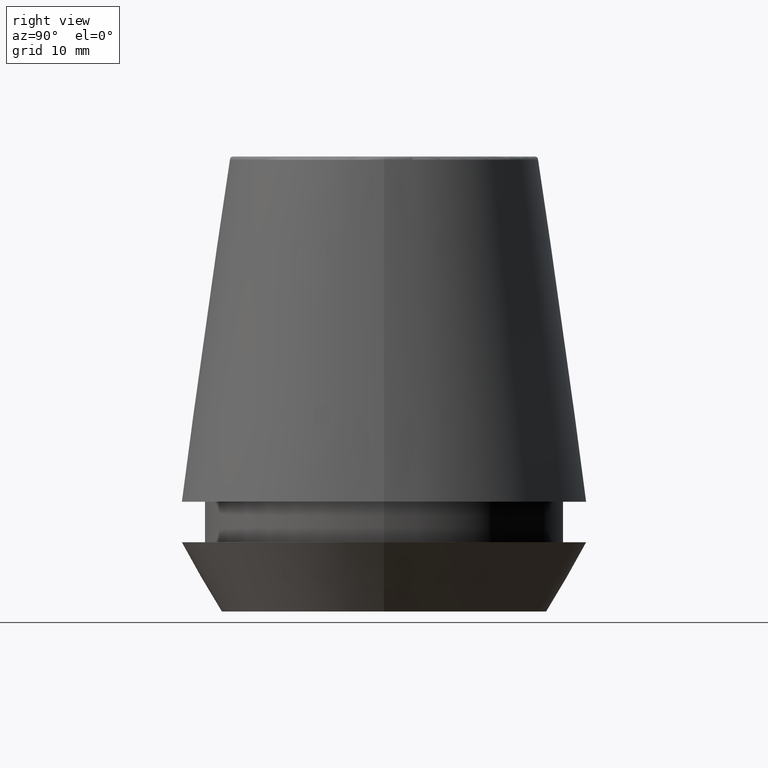
[diagram: clean part render]
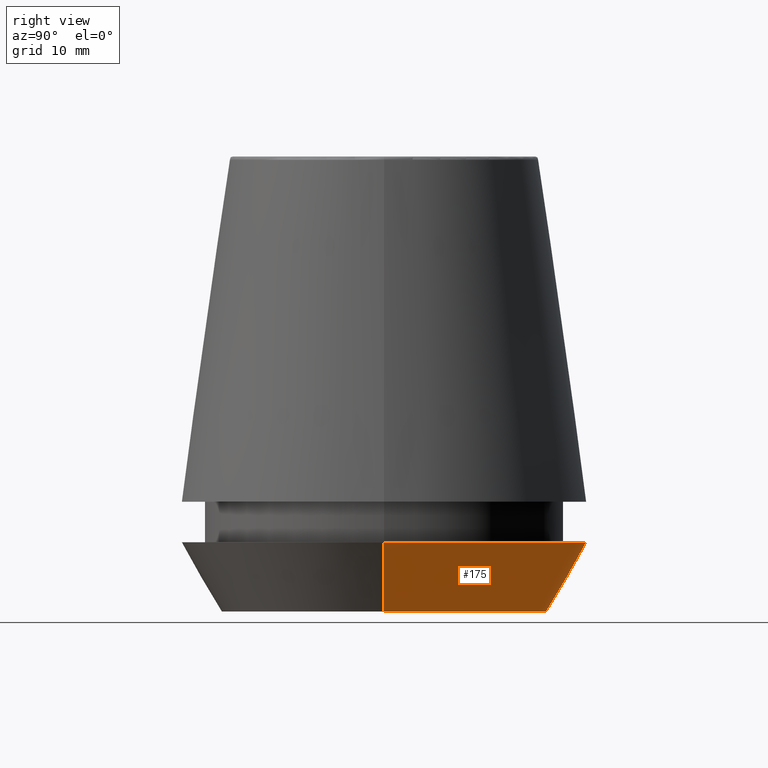
[diagram: same view with one face highlighted and labeled with its STEP entity id]
A machine part, right view. The second image highlights one B-rep face of the part: STEP entity #175.
In plain terms, the highlighted conical surface has half-angle 30 deg.
Its self-contained STEP definition (entity closure, byte-faithful):
#15 = EDGE_CURVE ( 'NONE', #26, #80, #262, .T. ) ;
#18 = VERTEX_POINT ( 'NONE', #240 ) ;
#22 = CARTESIAN_POINT ( 'NONE',  ( -16.45854811567268100, 2.263058382549599700E-015, 0.0000000000000000000 ) ) ;
#25 = DIRECTION ( 'NONE',  ( -0.0000000000000000000, -0.0000000000000000000, 1.000000000000000000 ) ) ;
#26 = VERTEX_POINT ( 'NONE', #22 ) ;
#58 = DIRECTION ( 'NONE',  ( -0.0000000000000000000, -0.0000000000000000000, 1.000000000000000000 ) ) ;
#60 = DIRECTION ( 'NONE',  ( 0.4999999999999941700, 0.0000000000000000000, 0.8660254037844420400 ) ) ;
#80 = VERTEX_POINT ( 'NONE', #375 ) ;
#83 = AXIS2_PLACEMENT_3D ( 'NONE', #331, #58, #87 ) ;
#87 = DIRECTION ( 'NONE',  ( 1.000000000000000000, 0.0000000000000000000, 0.0000000000000000000 ) ) ;
#93 = AXIS2_PLACEMENT_3D ( 'NONE', #279, #190, #325 ) ;
#97 = ORIENTED_EDGE ( 'NONE', *, *, #15, .T. ) ;
#99 = EDGE_LOOP ( 'NONE', ( #122, #97, #323, #223 ) ) ;
#102 = EDGE_CURVE ( 'NONE', #138, #18, #256, .T. ) ;
#111 = DIRECTION ( 'NONE',  ( 1.000000000000000000, 0.0000000000000000000, 0.0000000000000000000 ) ) ;
#122 = ORIENTED_EDGE ( 'NONE', *, *, #380, .T. ) ;
#138 = VERTEX_POINT ( 'NONE', #249 ) ;
#162 = VECTOR ( 'NONE', #305, 1000.000000000000000 ) ;
#175 = ADVANCED_FACE ( 'NONE', ( #292 ), #296, .T. ) ;
#190 = DIRECTION ( 'NONE',  ( -0.0000000000000000000, -0.0000000000000000000, 1.000000000000000000 ) ) ;
#196 = VECTOR ( 'NONE', #60, 1000.000000000000000 ) ;
#223 = ORIENTED_EDGE ( 'NONE', *, *, #102, .F. ) ;
#240 = CARTESIAN_POINT ( 'NONE',  ( 20.50000000000000000, 0.0000000000000000000, 7.000000000000006200 ) ) ;
#249 = CARTESIAN_POINT ( 'NONE',  ( 16.45854811567268100, 0.0000000000000000000, 0.0000000000000000000 ) ) ;
#256 = LINE ( 'NONE', #289, #196 ) ;
#262 = LINE ( 'NONE', #308, #162 ) ;
#279 = CARTESIAN_POINT ( 'NONE',  ( 0.0000000000000000000, 0.0000000000000000000, 0.0000000000000000000 ) ) ;
#289 = CARTESIAN_POINT ( 'NONE',  ( 16.45854811567268100, 0.0000000000000000000, 0.0000000000000000000 ) ) ;
#292 = FACE_OUTER_BOUND ( 'NONE', #99, .T. ) ;
#296 = CONICAL_SURFACE ( 'NONE', #83, 16.45854811567268100, 0.5235987755982921500 ) ;
#305 = DIRECTION ( 'NONE',  ( -0.4999999999999941700, 6.123233995736694500E-017, 0.8660254037844420400 ) ) ;
#308 = CARTESIAN_POINT ( 'NONE',  ( -16.45854811567268100, 2.015590826847124800E-015, 0.0000000000000000000 ) ) ;
#317 = CIRCLE ( 'NONE', #334, 20.50000000000000000 ) ;
#323 = ORIENTED_EDGE ( 'NONE', *, *, #347, .F. ) ;
#325 = DIRECTION ( 'NONE',  ( 1.000000000000000000, 0.0000000000000000000, 0.0000000000000000000 ) ) ;
#328 = CIRCLE ( 'NONE', #93, 16.45854811567268100 ) ;
#331 = CARTESIAN_POINT ( 'NONE',  ( 0.0000000000000000000, 0.0000000000000000000, 0.0000000000000000000 ) ) ;
#334 = AXIS2_PLACEMENT_3D ( 'NONE', #367, #25, #111 ) ;
#347 = EDGE_CURVE ( 'NONE', #18, #80, #317, .T. ) ;
#367 = CARTESIAN_POINT ( 'NONE',  ( 0.0000000000000000000, 0.0000000000000000000, 7.000000000000006200 ) ) ;
#375 = CARTESIAN_POINT ( 'NONE',  ( -20.50000000000000000, 2.510525938252074100E-015, 7.000000000000006200 ) ) ;
#380 = EDGE_CURVE ( 'NONE', #138, #26, #328, .T. ) ;